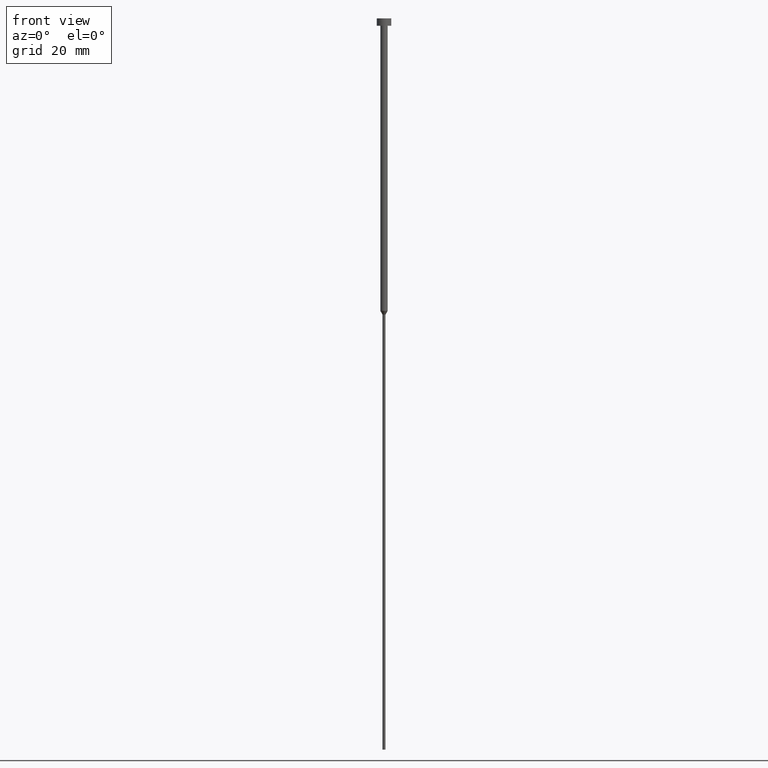
[diagram: clean part render]
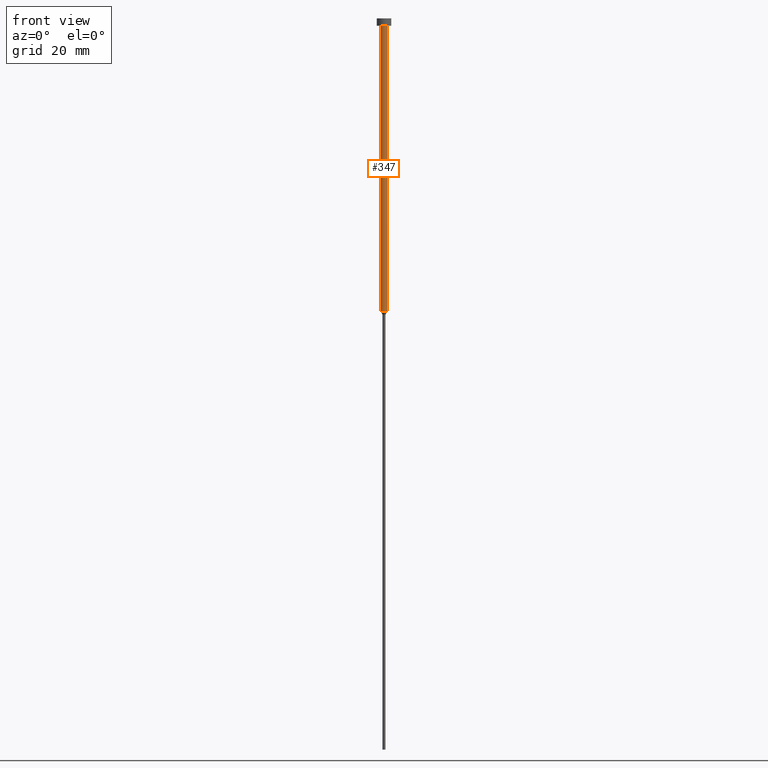
[diagram: same view with one face highlighted and labeled with its STEP entity id]
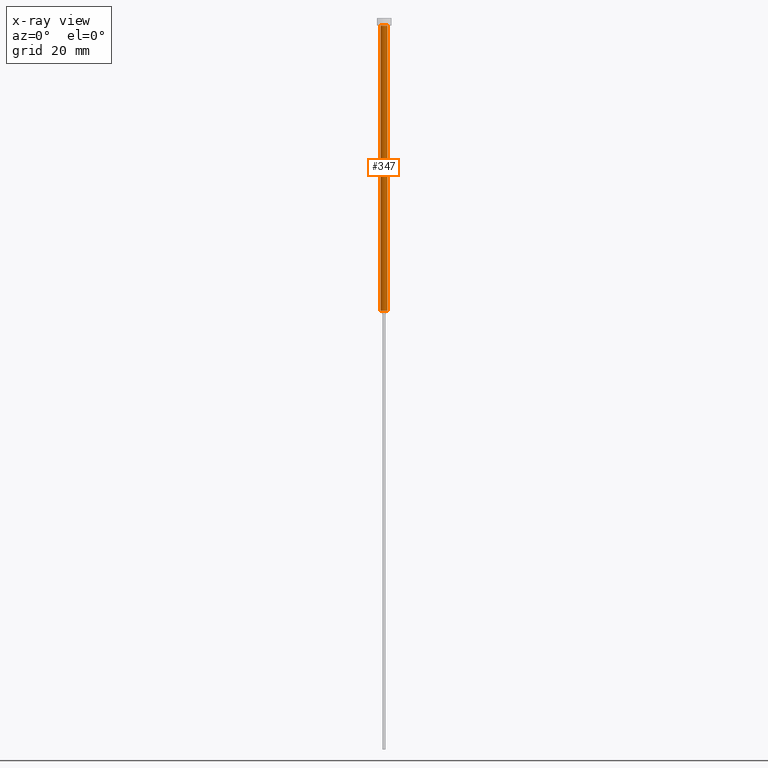
[diagram: x-ray of the same camera — body ghosted, the highlighted face saturated]
A machine part, front view. The second image highlights one B-rep face of the part: STEP entity #347.
The next image is the same camera in x-ray: the body ghosted, the highlighted face saturated — about 0% of this face is hidden behind the body in this view.
In plain terms, the highlighted cylindrical surface (edge-blend (fillet) strip) has radius 1 mm, axis along (-0, -0, 1).
Its self-contained STEP definition (entity closure, byte-faithful):
#3 = DIRECTION ( 'NONE',  ( -0.000000000000000000, -0.000000000000000000, 1.000000000000000000 ) ) ;
#5 = DIRECTION ( 'NONE',  ( 1.000000000000000000, 0.000000000000000000, 0.000000000000000000 ) ) ;
#8 = DIRECTION ( 'NONE',  ( -0.000000000000000000, -0.000000000000000000, 1.000000000000000000 ) ) ;
#21 = CARTESIAN_POINT ( 'NONE',  ( 1.000000000000003553, 0.000000000000000000, -2.000000000000000444 ) ) ;
#23 = CARTESIAN_POINT ( 'NONE',  ( -1.000000000000003331, 1.224646799147357151E-16, 0.000000000000000000 ) ) ;
#24 = EDGE_CURVE ( 'NONE', #87, #61, #169, .T. ) ;
#25 = CARTESIAN_POINT ( 'NONE',  ( 0.000000000000000000, 0.000000000000000000, -2.000000000000000444 ) ) ;
#38 = CARTESIAN_POINT ( 'NONE',  ( 0.000000000000000000, 0.000000000000000000, -80.00000000000000000 ) ) ;
#42 = CIRCLE ( 'NONE', #120, 1.000000000000003553 ) ;
#44 = CARTESIAN_POINT ( 'NONE',  ( -1.000000000000003109, 1.224646799147356905E-16, -80.00000000000000000 ) ) ;
#61 = VERTEX_POINT ( 'NONE', #66 ) ;
#66 = CARTESIAN_POINT ( 'NONE',  ( 1.000000000000003109, 0.000000000000000000, -80.00000000000000000 ) ) ;
#81 = AXIS2_PLACEMENT_3D ( 'NONE', #106, #109, #135 ) ;
#87 = VERTEX_POINT ( 'NONE', #44 ) ;
#91 = EDGE_CURVE ( 'NONE', #61, #262, #196, .T. ) ;
#97 = DIRECTION ( 'NONE',  ( 1.000000000000000000, 0.000000000000000000, 0.000000000000000000 ) ) ;
#106 = CARTESIAN_POINT ( 'NONE',  ( 0.000000000000000000, 0.000000000000000000, 0.000000000000000000 ) ) ;
#109 = DIRECTION ( 'NONE',  ( -0.000000000000000000, -0.000000000000000000, 1.000000000000000000 ) ) ;
#110 = VERTEX_POINT ( 'NONE', #258 ) ;
#114 = ORIENTED_EDGE ( 'NONE', *, *, #24, .T. ) ;
#120 = AXIS2_PLACEMENT_3D ( 'NONE', #25, #317, #97 ) ;
#121 = EDGE_CURVE ( 'NONE', #87, #110, #207, .T. ) ;
#123 = FACE_OUTER_BOUND ( 'NONE', #350, .T. ) ;
#135 = DIRECTION ( 'NONE',  ( 1.000000000000000000, 0.000000000000000000, 0.000000000000000000 ) ) ;
#140 = ORIENTED_EDGE ( 'NONE', *, *, #91, .T. ) ;
#146 = VECTOR ( 'NONE', #343, 1000.000000000000000 ) ;
#167 = CARTESIAN_POINT ( 'NONE',  ( 1.000000000000003331, 0.000000000000000000, 0.000000000000000000 ) ) ;
#169 = CIRCLE ( 'NONE', #279, 1.000000000000003109 ) ;
#195 = ORIENTED_EDGE ( 'NONE', *, *, #121, .F. ) ;
#196 = LINE ( 'NONE', #167, #216 ) ;
#207 = LINE ( 'NONE', #23, #146 ) ;
#216 = VECTOR ( 'NONE', #8, 1000.000000000000000 ) ;
#258 = CARTESIAN_POINT ( 'NONE',  ( -1.000000000000003553, 1.224646799147357398E-16, -2.000000000000000444 ) ) ;
#262 = VERTEX_POINT ( 'NONE', #21 ) ;
#265 = EDGE_CURVE ( 'NONE', #110, #262, #42, .T. ) ;
#279 = AXIS2_PLACEMENT_3D ( 'NONE', #38, #3, #5 ) ;
#317 = DIRECTION ( 'NONE',  ( -0.000000000000000000, -0.000000000000000000, 1.000000000000000000 ) ) ;
#319 = CYLINDRICAL_SURFACE ( 'NONE', #81, 1.000000000000003331 ) ;
#327 = ORIENTED_EDGE ( 'NONE', *, *, #265, .F. ) ;
#343 = DIRECTION ( 'NONE',  ( -0.000000000000000000, -0.000000000000000000, 1.000000000000000000 ) ) ;
#347 = ADVANCED_FACE ( 'NONE', ( #123 ), #319, .T. ) ;
#350 = EDGE_LOOP ( 'NONE', ( #195, #114, #140, #327 ) ) ;